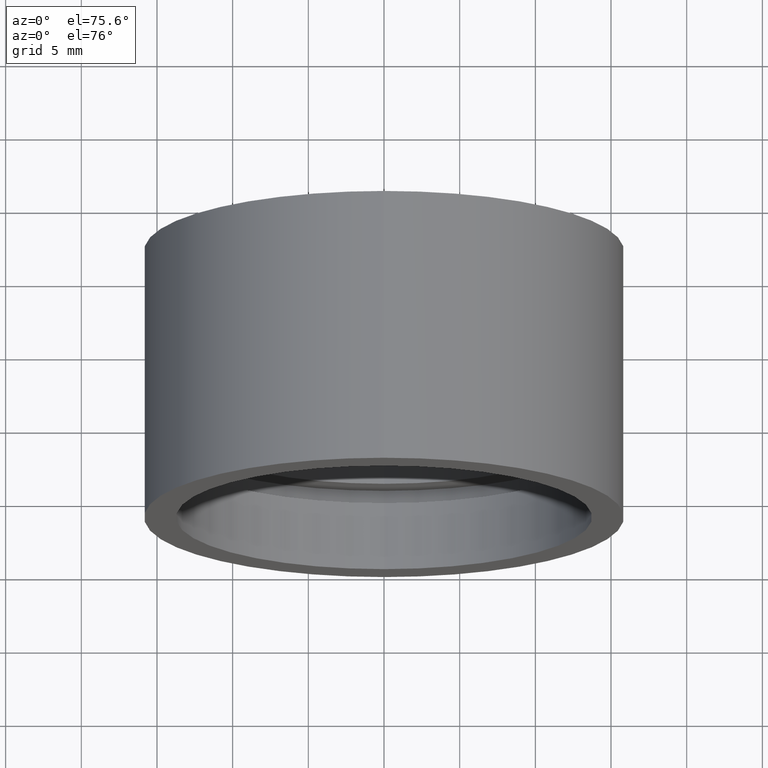
[diagram: clean part render]
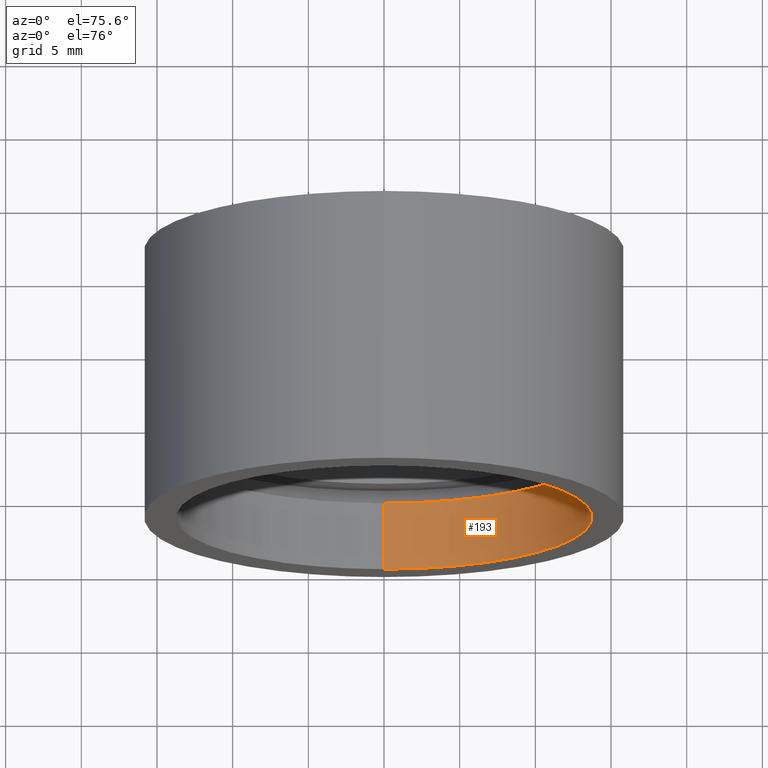
[diagram: same view with one face highlighted and labeled with its STEP entity id]
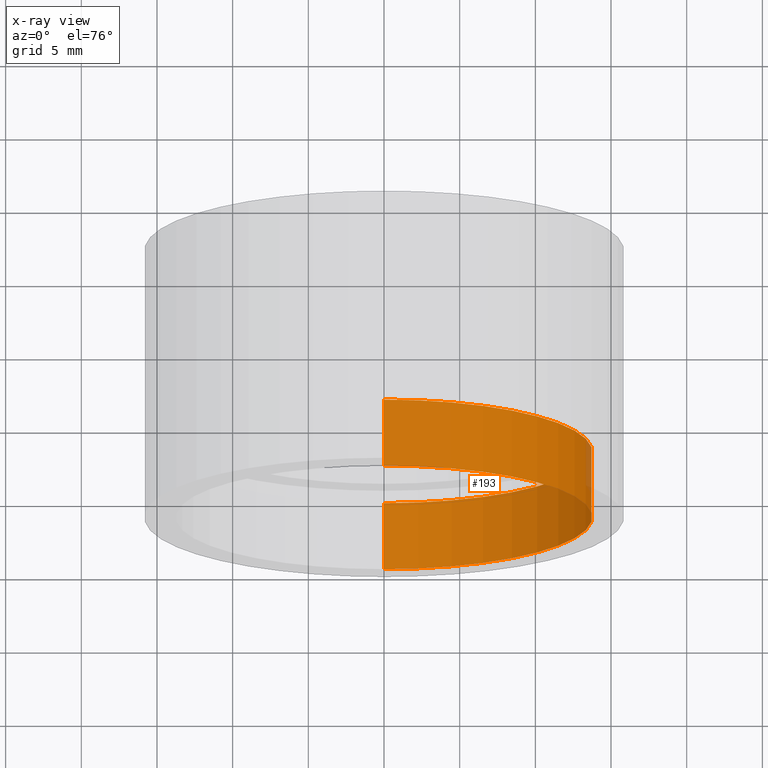
[diagram: x-ray of the same camera — body ghosted, the highlighted face saturated]
A machine part, auxiliary view. The second image highlights one B-rep face of the part: STEP entity #193.
The next image is the same camera in x-ray: the body ghosted, the highlighted face saturated — about 1% of this face is hidden behind the body in this view.
In plain terms, the highlighted cylindrical surface (partial cylindrical patch) has radius 13.75 mm, axis along (-0, 1, -0).
Its self-contained STEP definition (entity closure, byte-faithful):
#1 = EDGE_CURVE ( 'NONE', #546, #177, #510, .T. ) ;
#13 = CARTESIAN_POINT ( 'NONE',  ( 0.0000000000000000000, -2.775557561562891400E-014, 13.75000000000002100 ) ) ;
#36 = ORIENTED_EDGE ( 'NONE', *, *, #218, .F. ) ;
#53 = CARTESIAN_POINT ( 'NONE',  ( 1.683889348827613200E-015, 4.499999999999976000, -13.75000000000002100 ) ) ;
#56 = ORIENTED_EDGE ( 'NONE', *, *, #321, .T. ) ;
#62 = FACE_OUTER_BOUND ( 'NONE', #71, .T. ) ;
#66 = EDGE_CURVE ( 'NONE', #621, #177, #544, .T. ) ;
#71 = EDGE_LOOP ( 'NONE', ( #333, #36, #56, #391 ) ) ;
#73 = AXIS2_PLACEMENT_3D ( 'NONE', #130, #291, #282 ) ;
#87 = CARTESIAN_POINT ( 'NONE',  ( 0.0000000000000000000, 4.499999999999976000, 13.75000000000002100 ) ) ;
#99 = LINE ( 'NONE', #354, #557 ) ;
#130 = CARTESIAN_POINT ( 'NONE',  ( 0.0000000000000000000, 4.499999999999976000, 0.0000000000000000000 ) ) ;
#145 = CARTESIAN_POINT ( 'NONE',  ( 0.0000000000000000000, -2.775557561562891400E-014, 0.0000000000000000000 ) ) ;
#177 = VERTEX_POINT ( 'NONE', #53 ) ;
#193 = ADVANCED_FACE ( 'NONE', ( #62 ), #258, .F. ) ;
#194 = DIRECTION ( 'NONE',  ( 0.0000000000000000000, 0.0000000000000000000, 1.000000000000000000 ) ) ;
#204 = VERTEX_POINT ( 'NONE', #13 ) ;
#206 = DIRECTION ( 'NONE',  ( -0.0000000000000000000, 1.000000000000000000, -0.0000000000000000000 ) ) ;
#218 = EDGE_CURVE ( 'NONE', #204, #546, #331, .T. ) ;
#258 = CYLINDRICAL_SURFACE ( 'NONE', #289, 13.75000000000002100 ) ;
#274 = VECTOR ( 'NONE', #614, 1000.000000000000000 ) ;
#282 = DIRECTION ( 'NONE',  ( 0.0000000000000000000, 0.0000000000000000000, 1.000000000000000000 ) ) ;
#289 = AXIS2_PLACEMENT_3D ( 'NONE', #344, #398, #395 ) ;
#291 = DIRECTION ( 'NONE',  ( -0.0000000000000000000, 1.000000000000000000, -0.0000000000000000000 ) ) ;
#321 = EDGE_CURVE ( 'NONE', #204, #621, #99, .T. ) ;
#331 = CIRCLE ( 'NONE', #334, 13.75000000000002100 ) ;
#333 = ORIENTED_EDGE ( 'NONE', *, *, #1, .F. ) ;
#334 = AXIS2_PLACEMENT_3D ( 'NONE', #145, #486, #194 ) ;
#344 = CARTESIAN_POINT ( 'NONE',  ( 0.0000000000000000000, 161.3761669434274500, 0.0000000000000000000 ) ) ;
#354 = CARTESIAN_POINT ( 'NONE',  ( 0.0000000000000000000, 161.3761669434274500, 13.75000000000002100 ) ) ;
#391 = ORIENTED_EDGE ( 'NONE', *, *, #66, .T. ) ;
#395 = DIRECTION ( 'NONE',  ( 0.0000000000000000000, 0.0000000000000000000, 1.000000000000000000 ) ) ;
#398 = DIRECTION ( 'NONE',  ( -0.0000000000000000000, 1.000000000000000000, -0.0000000000000000000 ) ) ;
#486 = DIRECTION ( 'NONE',  ( -0.0000000000000000000, 1.000000000000000000, -0.0000000000000000000 ) ) ;
#510 = LINE ( 'NONE', #514, #274 ) ;
#514 = CARTESIAN_POINT ( 'NONE',  ( 1.683889348827613200E-015, 161.3761669434274500, -13.75000000000002100 ) ) ;
#544 = CIRCLE ( 'NONE', #73, 13.75000000000002100 ) ;
#546 = VERTEX_POINT ( 'NONE', #574 ) ;
#557 = VECTOR ( 'NONE', #206, 1000.000000000000000 ) ;
#574 = CARTESIAN_POINT ( 'NONE',  ( 1.683889348827613200E-015, -2.775557561562891400E-014, -13.75000000000002100 ) ) ;
#614 = DIRECTION ( 'NONE',  ( -0.0000000000000000000, 1.000000000000000000, -0.0000000000000000000 ) ) ;
#621 = VERTEX_POINT ( 'NONE', #87 ) ;